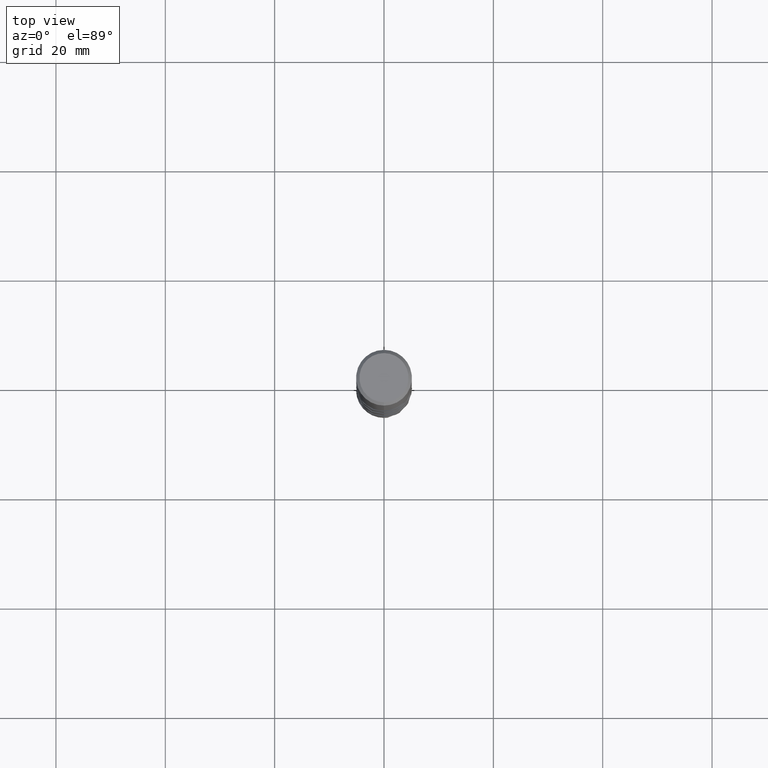
[diagram: clean part render]
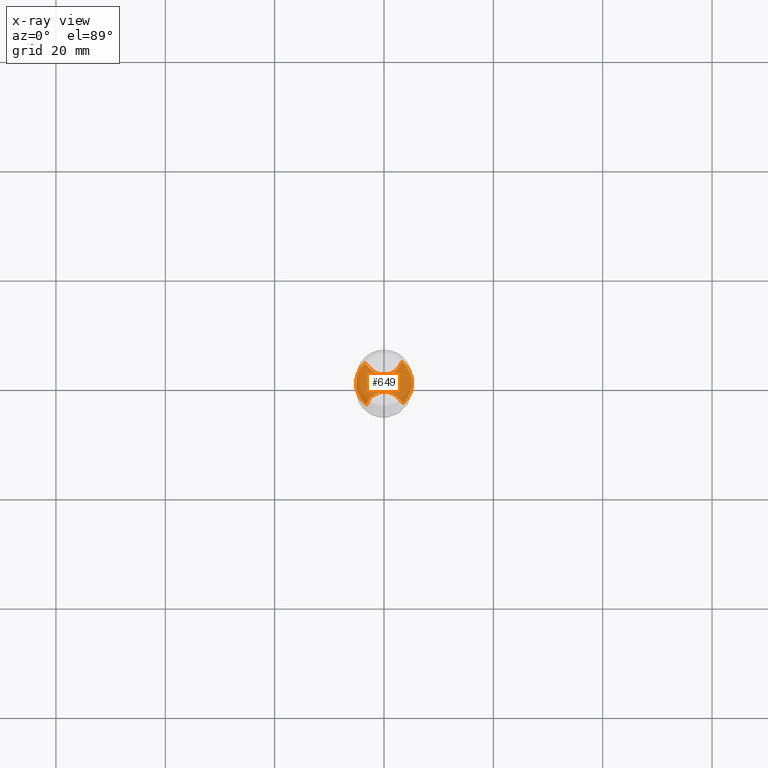
[diagram: x-ray — body ghosted, one internal face saturated and labeled with its STEP entity id]
A machine part, top view, then the same camera in x-ray: the body is ghosted and one INTERNAL B-rep face — a face not visible from any outside direction — is saturated and labeled: STEP entity #649.
In plain terms, the highlighted planar face has unit normal (-0, 0, 1).
Its self-contained STEP definition (entity closure, byte-faithful):
#325=VERTEX_POINT('',#828);
#331=VERTEX_POINT('',#834);
#355=EDGE_CURVE('',#419,#713,#861,.T.);
#419=VERTEX_POINT('',#930);
#509=VERTEX_POINT('',#1026);
#559=VERTEX_POINT('',#1083);
#623=EDGE_CURVE('',#713,#509,#1152,.T.);
#649=ADVANCED_FACE('',(#1179),#1180,.T.);
#665=EDGE_CURVE('',#331,#509,#1200,.T.);
#669=EDGE_CURVE('',#325,#559,#1204,.T.);
#701=EDGE_CURVE('',#419,#559,#1240,.T.);
#703=EDGE_CURVE('',#331,#325,#1242,.T.);
#713=VERTEX_POINT('',#1253);
#828=CARTESIAN_POINT('',(2.40728805596356,-2.52617731624715,-59.0));
#834=CARTESIAN_POINT('',(-3.24738943427791,-3.93235830922618,-59.0));
#861=B_SPLINE_CURVE_WITH_KNOTS('',3,(#2662,#2663,#2664,#2665,#2666,#2667,#2668,#2669,#2670,#2671,#2672,#2673,#2674,#2675,#2676,#2677),.UNSPECIFIED.,.F.,.F.,(4,2,2,2,2,2,2,4),(0.0,1.32812806614495,2.65608913948836,3.98402331153891,5.31205201875623,6.64024096530833,7.44724729762886,8.2542687486076),.UNSPECIFIED.);
#930=CARTESIAN_POINT('',(3.24738943427791,3.93235830922618,-59.0));
#1026=CARTESIAN_POINT('',(-3.54614367867005,3.66522100564597,-59.0));
#1083=CARTESIAN_POINT('',(3.54614367867005,-3.66522100564597,-59.0));
#1152=B_SPLINE_CURVE_WITH_KNOTS('',3,(#6150,#6151,#6152,#6153),.UNSPECIFIED.,.F.,.F.,(4,4),(0.0,3.69351215336406),.UNSPECIFIED.);
#1179=FACE_OUTER_BOUND('',#6866,.T.);
#1180=PLANE('',#6867);
#1200=CIRCLE('',#6918,5.0999);
#1204=B_SPLINE_CURVE_WITH_KNOTS('',3,(#6925,#6926,#6927,#6928),.UNSPECIFIED.,.F.,.F.,(4,4),(0.0,3.69351215279625),.UNSPECIFIED.);
#1240=CIRCLE('',#7002,5.0999);
#1242=B_SPLINE_CURVE_WITH_KNOTS('',3,(#7005,#7006,#7007,#7008,#7009,#7010,#7011,#7012,#7013,#7014,#7015,#7016,#7017,#7018,#7019,#7020),.UNSPECIFIED.,.F.,.F.,(4,2,2,2,2,2,2,4),(0.0,1.32812806614495,2.65608913948836,3.98402331153888,5.31205201875613,6.64024096530812,7.4472472976286,8.25426874860732),.UNSPECIFIED.);
#1253=CARTESIAN_POINT('',(-2.40728805596356,2.52617731624714,-59.0));
#2662=CARTESIAN_POINT('',(3.38973838452733,5.1499,-59.0));
#2663=CARTESIAN_POINT('',(3.41844484480211,4.7081223268646,-59.0));
#2664=CARTESIAN_POINT('',(3.36058964642755,4.26496425237006,-59.0));
#2665=CARTESIAN_POINT('',(3.07826310274167,3.4258244311332,-59.0));
#2666=CARTESIAN_POINT('',(2.85651366562557,3.03786548021237,-59.0));
#2667=CARTESIAN_POINT('',(2.27678326083387,2.36879101146421,-59.0));
#2668=CARTESIAN_POINT('',(1.9243514539778,2.09407453085895,-59.0));
#2669=CARTESIAN_POINT('',(1.13399256212249,1.69517358324134,-59.0));
#2670=CARTESIAN_POINT('',(0.703619517177106,1.57481524992439,-59.0));
#2671=CARTESIAN_POINT('',(-0.179093584776571,1.5058212964371,-59.0));
#2672=CARTESIAN_POINT('',(-0.622995213675746,1.5578659208812,-59.0));
#2673=CARTESIAN_POINT('',(-1.30049768015456,1.77593483919636,-59.0));
#2674=CARTESIAN_POINT('',(-1.54588031878091,1.88845064173523,-59.0));
#2675=CARTESIAN_POINT('',(-2.00498380048661,2.1689485119046,-59.0));
#2676=CARTESIAN_POINT('',(-2.21708723665059,2.33594378715179,-59.0));
#2677=CARTESIAN_POINT('',(-2.40728805596356,2.52617731624714,-59.0));
#6150=CARTESIAN_POINT('',(-2.40728805603426,2.52617731617644,-59.0));
#6151=CARTESIAN_POINT('',(-3.27778904110759,3.39681465245661,-59.0));
#6152=CARTESIAN_POINT('',(-4.1594345362845,4.27861434066403,-59.0));
#6153=CARTESIAN_POINT('',(-5.03054456524594,5.1499,-59.0));
#6866=EDGE_LOOP('',(#7703,#7704,#7705,#7706,#7707,#7708));
#6867=AXIS2_PLACEMENT_3D('',#7709,#7710,#7711);
#6918=AXIS2_PLACEMENT_3D('',#7744,#7745,#7746);
#6925=CARTESIAN_POINT('',(2.40728805603426,-2.52617731617644,-59.0));
#6926=CARTESIAN_POINT('',(3.27778904097376,-3.39681465232278,-59.0));
#6927=CARTESIAN_POINT('',(4.15943453624106,-4.27861434062058,-59.0));
#6928=CARTESIAN_POINT('',(5.03054456524593,-5.1499,-59.0));
#7002=AXIS2_PLACEMENT_3D('',#7788,#7789,#7790);
#7005=CARTESIAN_POINT('',(-3.38973838452733,-5.1499,-59.0));
#7006=CARTESIAN_POINT('',(-3.41844484480211,-4.7081223268646,-59.0));
#7007=CARTESIAN_POINT('',(-3.36058964642755,-4.26496425237006,-59.0));
#7008=CARTESIAN_POINT('',(-3.07826310274167,-3.4258244311332,-59.0));
#7009=CARTESIAN_POINT('',(-2.85651366562556,-3.03786548021237,-59.0));
#7010=CARTESIAN_POINT('',(-2.27678326083386,-2.36879101146421,-59.0));
#7011=CARTESIAN_POINT('',(-1.9243514539778,-2.09407453085896,-59.0));
#7012=CARTESIAN_POINT('',(-1.13399256212249,-1.69517358324135,-59.0));
#7013=CARTESIAN_POINT('',(-0.703619517177119,-1.57481524992439,-59.0));
#7014=CARTESIAN_POINT('',(0.179093584776579,-1.5058212964371,-59.0));
#7015=CARTESIAN_POINT('',(0.622995213675758,-1.55786592088121,-59.0));
#7016=CARTESIAN_POINT('',(1.30049768015457,-1.77593483919637,-59.0));
#7017=CARTESIAN_POINT('',(1.54588031878092,-1.88845064173524,-59.0));
#7018=CARTESIAN_POINT('',(2.00498380048662,-2.16894851190461,-59.0));
#7019=CARTESIAN_POINT('',(2.2170872366506,-2.3359437871518,-59.0));
#7020=CARTESIAN_POINT('',(2.40728805596356,-2.52617731624715,-59.0));
#7703=ORIENTED_EDGE('',*,*,#669,.T.);
#7704=ORIENTED_EDGE('',*,*,#701,.F.);
#7705=ORIENTED_EDGE('',*,*,#355,.T.);
#7706=ORIENTED_EDGE('',*,*,#623,.T.);
#7707=ORIENTED_EDGE('',*,*,#665,.F.);
#7708=ORIENTED_EDGE('',*,*,#703,.T.);
#7709=CARTESIAN_POINT('',(0.0,2.54995,-59.0));
#7710=DIRECTION('',(-0.0,0.0,1.0));
#7711=DIRECTION('',(0.0,-1.0,0.0));
#7744=CARTESIAN_POINT('',(0.0,0.0,-59.0));
#7745=DIRECTION('',(0.0,0.0,-1.0));
#7746=DIRECTION('',(0.0,1.0,0.0));
#7788=CARTESIAN_POINT('',(0.0,0.0,-59.0));
#7789=DIRECTION('',(0.0,0.0,-1.0));
#7790=DIRECTION('',(0.0,1.0,0.0));